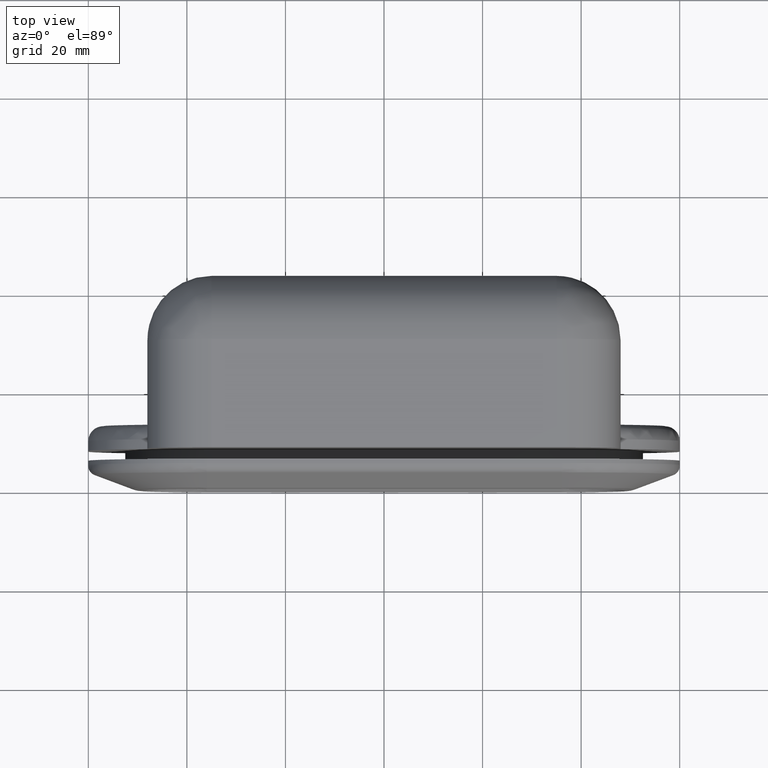
[diagram: clean part render]
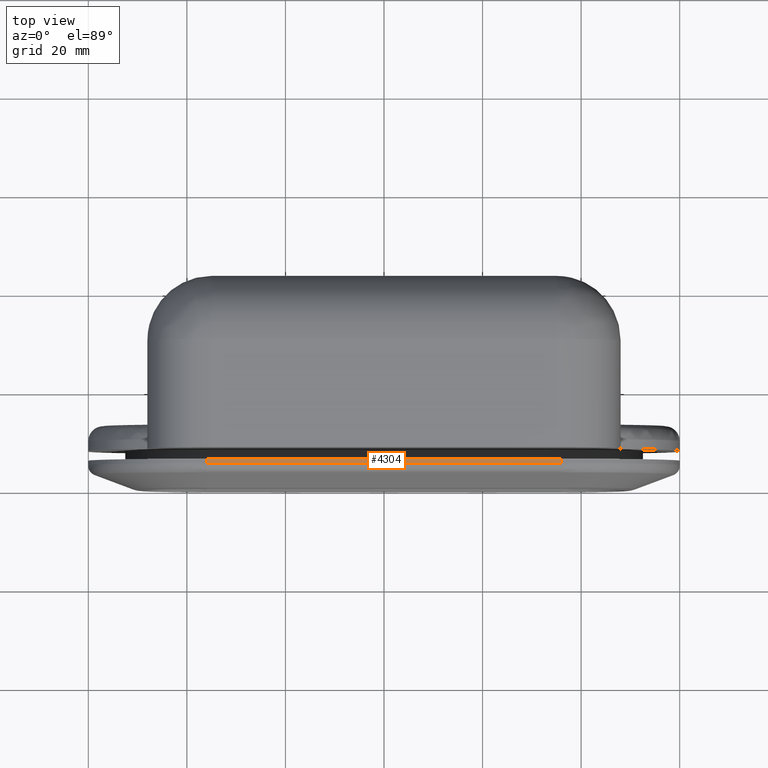
[diagram: same view with one face highlighted and labeled with its STEP entity id]
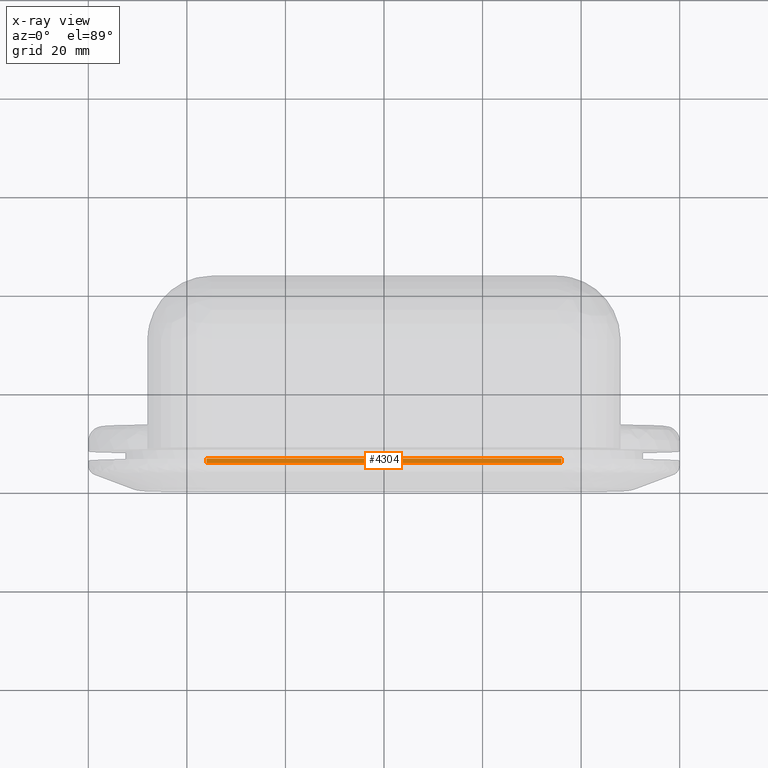
[diagram: x-ray of the same camera — body ghosted, the highlighted face saturated]
A machine part, top view. The second image highlights one B-rep face of the part: STEP entity #4304.
The next image is the same camera in x-ray: the body ghosted, the highlighted face saturated — about 0% of this face is hidden behind the body in this view.
In plain terms, the highlighted face is a freeform B-spline surface patch.
Its self-contained STEP definition (entity closure, byte-faithful):
#1171=CARTESIAN_POINT('',(36.0,5.127299510607310,29.0));
#1172=VERTEX_POINT('',#1171);
#1277=CARTESIAN_POINT('',(-36.0,5.127299510607200,29.0));
#1278=VERTEX_POINT('',#1277);
#1300=CARTESIAN_POINT('',(-36.0,5.127299510607200,29.0));
#1301=CARTESIAN_POINT('',(36.0,5.127299510607310,29.0));
#1302=QUASI_UNIFORM_CURVE('',1,(#1300,#1301),.UNSPECIFIED.,.F.,.U.);
#1303=EDGE_CURVE('',#1278,#1172,#1302,.T.);
#4006=CARTESIAN_POINT('',(36.0,6.0,29.0));
#4007=VERTEX_POINT('',#4006);
#4074=CARTESIAN_POINT('',(-36.0,6.0,29.0));
#4075=VERTEX_POINT('',#4074);
#4089=CARTESIAN_POINT('',(36.0,6.0,29.0));
#4090=CARTESIAN_POINT('',(-36.0,6.0,29.0));
#4091=QUASI_UNIFORM_CURVE('',1,(#4089,#4090),.UNSPECIFIED.,.F.,.U.);
#4092=EDGE_CURVE('',#4007,#4075,#4091,.T.);
#4161=CARTESIAN_POINT('',(-36.0,6.0,29.0));
#4162=CARTESIAN_POINT('',(-36.0,5.127299510607200,29.0));
#4163=QUASI_UNIFORM_CURVE('',1,(#4161,#4162),.UNSPECIFIED.,.F.,.U.);
#4164=EDGE_CURVE('',#4075,#1278,#4163,.T.);
#4282=CARTESIAN_POINT('',(36.0,6.0,29.0));
#4283=CARTESIAN_POINT('',(36.0,5.127299510607310,29.0));
#4284=QUASI_UNIFORM_CURVE('',1,(#4282,#4283),.UNSPECIFIED.,.F.,.U.);
#4285=EDGE_CURVE('',#4007,#1172,#4284,.T.);
#4293=CARTESIAN_POINT('',(39.596399860450028,5.083707909854009,29.0));
#4294=CARTESIAN_POINT('',(-39.596401791640517,5.083707909854009,29.0));
#4295=CARTESIAN_POINT('',(39.596399860450028,6.043591421294532,29.0));
#4296=CARTESIAN_POINT('',(-39.596401791640517,6.043591421294532,29.0));
#4297=B_SPLINE_SURFACE_WITH_KNOTS('',1,1,((#4293,#4295),(#4294,#4296)),.UNSPECIFIED.,.F.,.F.,.U.,(2,2),(2,2),(0.0,79.192801652090537),(0.041708131557330,0.958291697079316),.UNSPECIFIED.);
#4298=ORIENTED_EDGE('',*,*,#4164,.T.);
#4299=ORIENTED_EDGE('',*,*,#1303,.T.);
#4300=ORIENTED_EDGE('',*,*,#4285,.F.);
#4301=ORIENTED_EDGE('',*,*,#4092,.T.);
#4302=EDGE_LOOP('',(#4298,#4299,#4300,#4301));
#4303=FACE_OUTER_BOUND('',#4302,.T.);
#4304=ADVANCED_FACE('',(#4303),#4297,.F.);